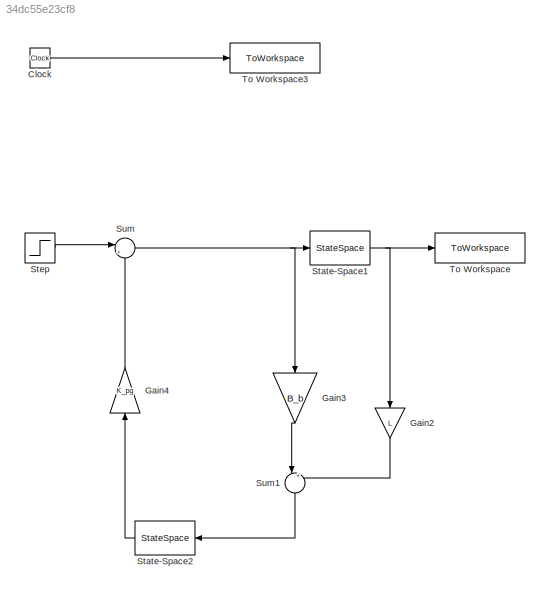
MODEL slx_34dc55e23cf8
KIND model
CONFIG AbsTol = auto
CONFIG EnableMultiTasking = off
CONFIG FixedStep = 0.05
CONFIG MaxStep = auto
CONFIG MinStep = auto
CONFIG RelTol = 1e-3
CONFIG SampleTimeConstraint = Unconstrained
CONFIG SolverName = VariableStepAuto
CONFIG StartTime = 0.0
CONFIG StopTime = 2
BLOCK [Clock] Clock
BLOCK [Gain] Gain2
  Gain = L
  Multiplication = Matrix(K*u)
  NameLocation = left
BLOCK [Gain] Gain3
  Gain = B_b
  Multiplication = Matrix(K*u)
  NameLocation = left
BLOCK [Gain] Gain4
  Gain = K_pg
  Multiplication = Matrix(K*u)
  NameLocation = right
BLOCK [StateSpace] State-Space1
  A = A_b
  B = B_b
  C = diag([1,1,1,1])
  D = D_b
  InitialCondition = 0
BLOCK [StateSpace] State-Space2
  A = A_b - L*C_b
  B = eye(4)
  C = eye(4)
  D = zeros(4,4)
  InitialCondition = 0
BLOCK [Step] Step
  SampleTime = 0
BLOCK [Sum] Sum
  Inputs = |+-
BLOCK [Sum] Sum1
  Inputs = |++
  NameLocation = left
BLOCK [ToWorkspace] To Workspace
  FixptAsFi = on
  MaxDataPoints = inf
  SampleTime = -1
  VariableName = y
BLOCK [ToWorkspace] To Workspace3
  FixptAsFi = on
  MaxDataPoints = inf
  SampleTime = -1
  VariableName = t
LINE Clock:1 -> To Workspace3:1
LINE Gain2:1 -> Sum1:2
LINE Gain3:1 -> Sum1:1
LINE Gain4:1 -> Sum:2
NET State-Space1:1 -> Gain2:1, To Workspace:1
LINE State-Space2:1 -> Gain4:1
LINE Step:1 -> Sum:1
LINE Sum1:1 -> State-Space2:1
NET Sum:1 -> Gain3:1, State-Space1:1
note: NET lines group one-source signal fan-out (src -> all destinations, sorted); 1:1 wires keep LINE
